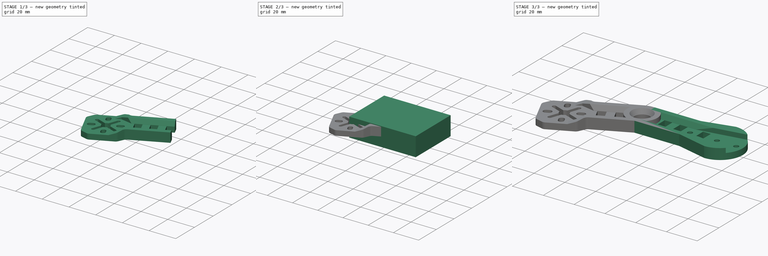
[diagram: build sequence overview — one tinted view per stage of 3, left to right]
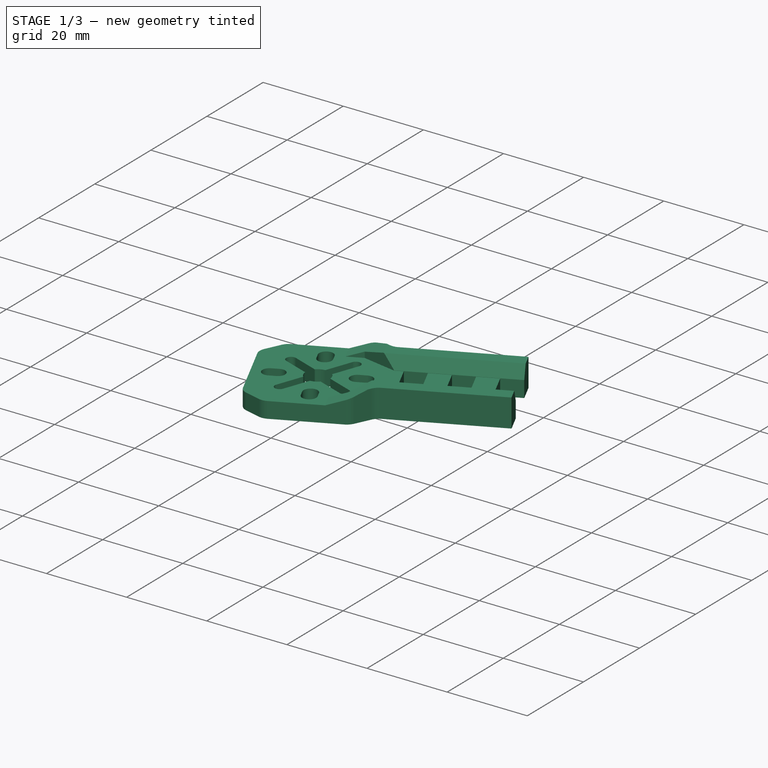
[diagram: stage 1 of 3 — iso view after this stage's code; geometry added in this stage tinted green]
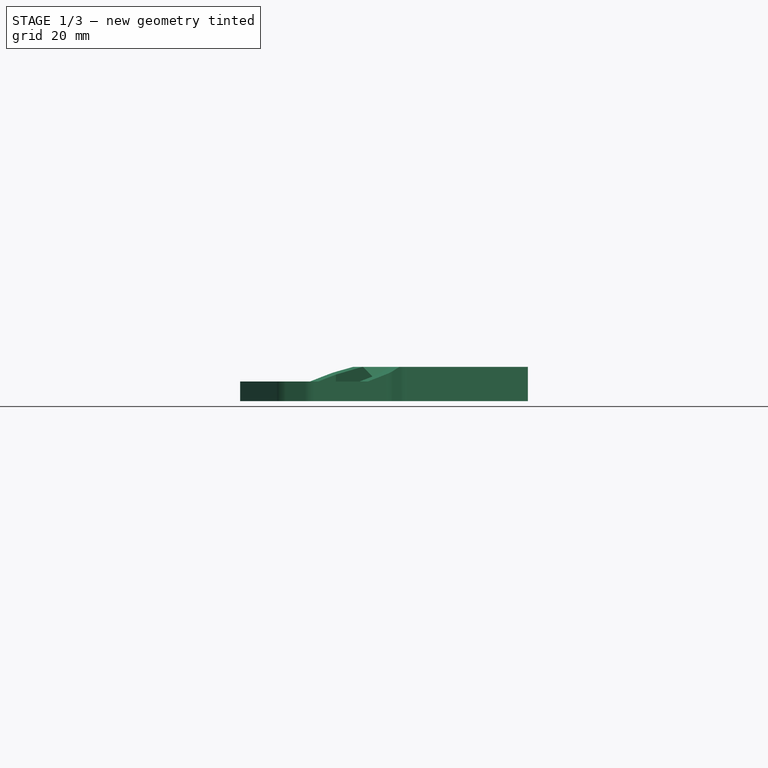
[diagram: stage 1 of 3 — front view after this stage's code; geometry added in this stage tinted green]
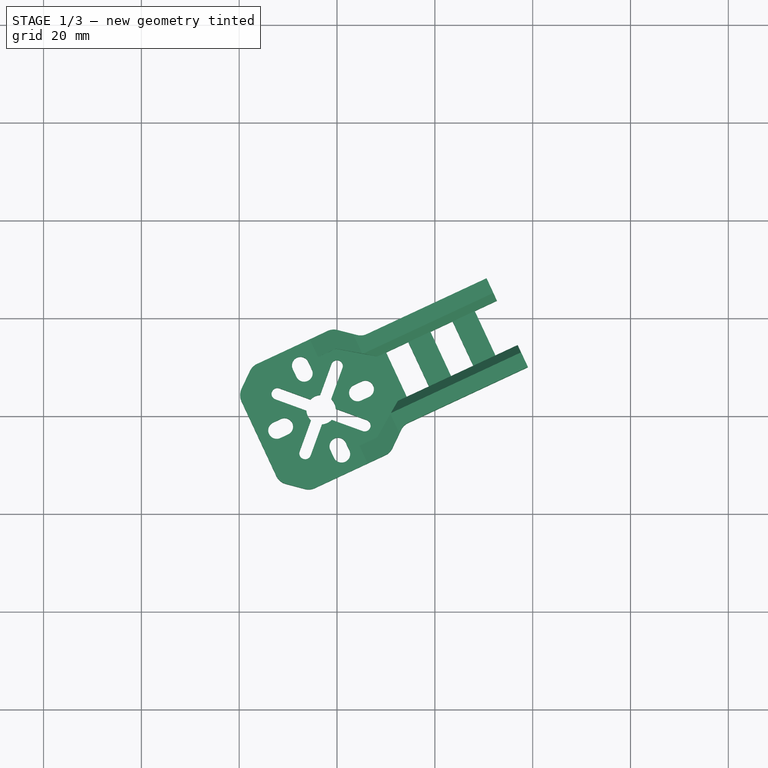
[diagram: stage 1 of 3 — top view after this stage's code; geometry added in this stage tinted green]
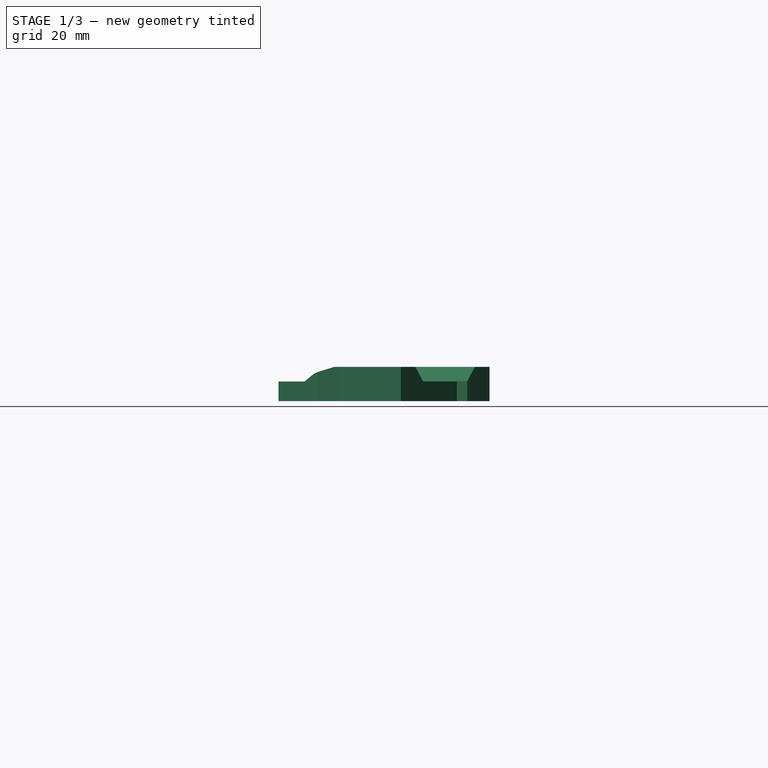
[diagram: stage 1 of 3 — right view after this stage's code; geometry added in this stage tinted green]
FCSTD DOCUMENT  (FreeCAD 0.16R6703 (Git))
Label: Long Arm 25mm 15graus Dir
License: FreeArt
LicenseURL: http://artlibre.org/licence/lal
objects: Part::Feature×3, Sketcher::SketchObject×3, PartDesign::Pad×2, Part::Cut×2, PartDesign::Revolution×1, Part::Fuse×1
note: 15 computed .brp shape members not serialized (recipe doc carries the construction recipe); baked Part::Feature solids carry a one-line shape summary decoded from their .brp

FEATURE [Part::Feature] Solid002
  shape: bbox 105.3 x 29.5 x 7 mm, 2349 faces (baked)
FEATURE [Sketcher::SketchObject] Sketch001
  sketch-geometry (4):
    g0: LineSegment StartX=42 StartY=22.5881 StartZ=0 EndX=97.3327 EndY=22.5881 EndZ=0
    g1: LineSegment StartX=97.3327 StartY=22.5881 StartZ=0 EndX=97.3327 EndY=-22.8194 EndZ=0
    g2: LineSegment StartX=97.3327 StartY=-22.8194 StartZ=0 EndX=42 EndY=-22.8194 EndZ=0
    g3: LineSegment StartX=42 StartY=-22.8194 StartZ=0 EndX=42 EndY=22.5881 EndZ=0
  constraints (11):
    c: Coincident(g0,g1)
    c: Coincident(g1,g2)
    c: Coincident(g2,g3)
    c: Coincident(g3,g0)
    c: Horizontal(g0)
    c: Horizontal(g2)
    c: Vertical(g1)
    c: Vertical(g3)
    c: Equal(g3,g1)
    c: Equal(g0,g2)
    c: Distance(g-1,g3) = 42
FEATURE [PartDesign::Pad] Pad001
  Length = 20
  Length2 = 100
  Midplane = true
  Sketch = -> Sketch001
  Type = 0
FEATURE [Part::Cut] Cut001  label="Motor Part Shift 10mm"
  Base = -> Solid002
  Placement = pos=(-23.2631,-18.6762,0) rot=(0,0,1;0.436332rad)
  Tool = -> Pad001
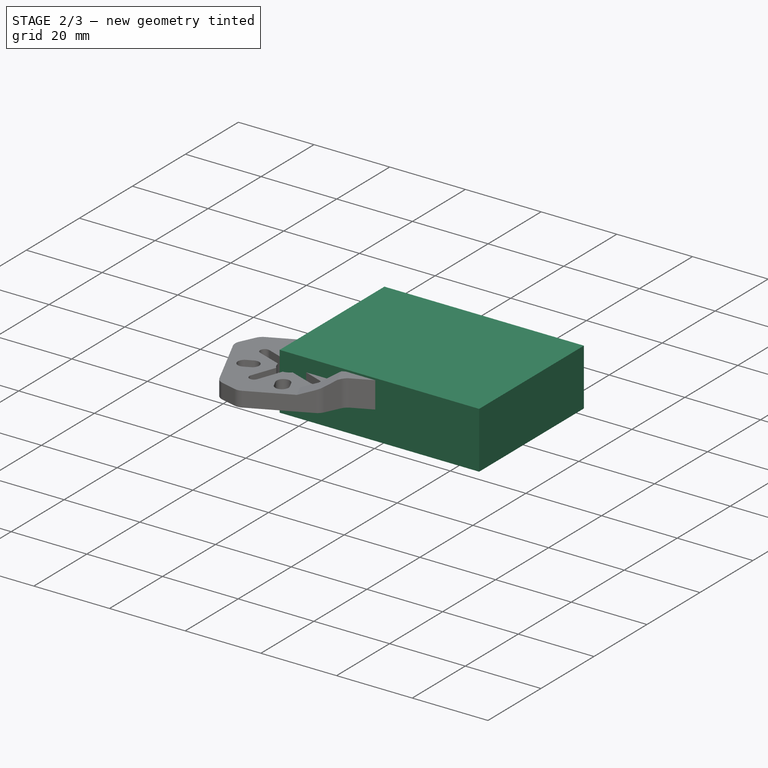
[diagram: stage 2 of 3 — iso view after this stage's code; geometry added in this stage tinted green]
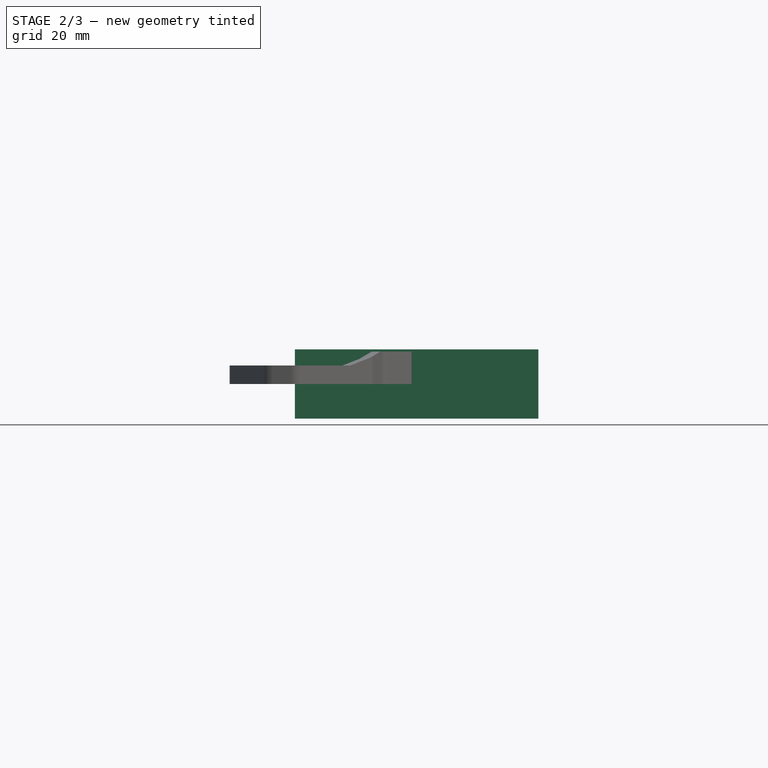
[diagram: stage 2 of 3 — front view after this stage's code; geometry added in this stage tinted green]
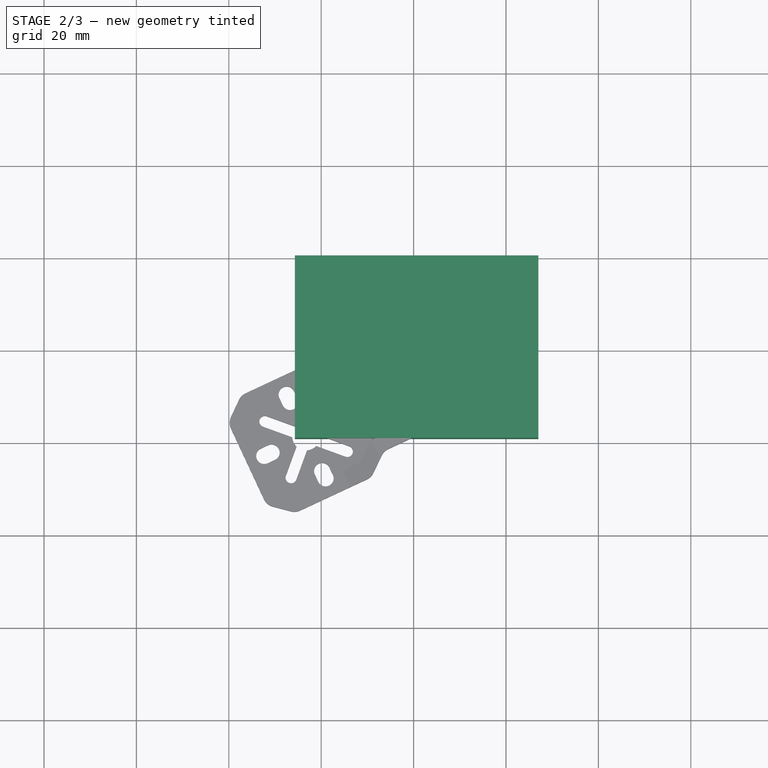
[diagram: stage 2 of 3 — top view after this stage's code; geometry added in this stage tinted green]
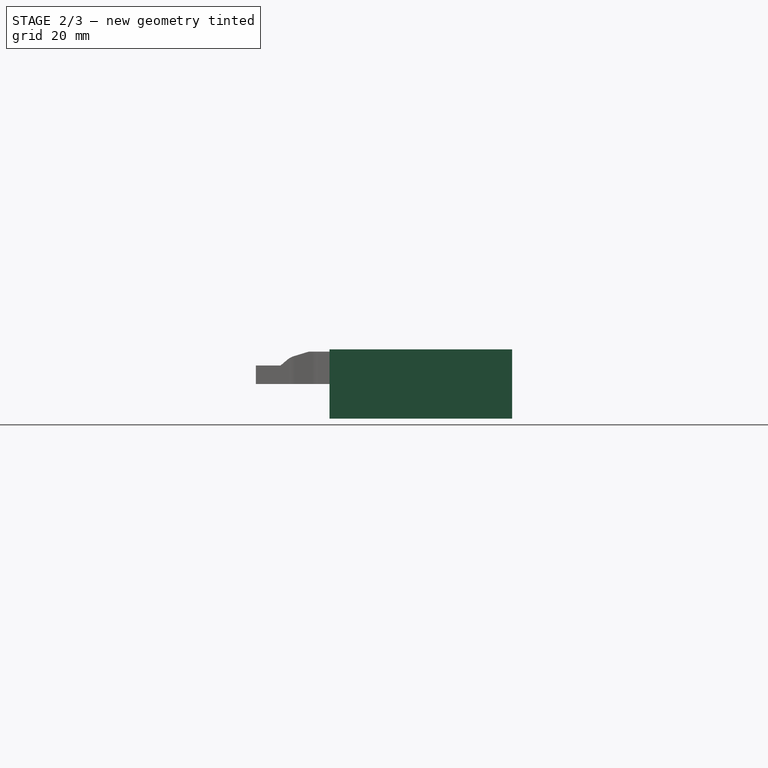
[diagram: stage 2 of 3 — right view after this stage's code; geometry added in this stage tinted green]
FEATURE [Part::Feature] Solid
  shape: bbox 105.3 x 29.5 x 7 mm, 2349 faces (baked)
FEATURE [Part::Feature] Solid001
  shape: bbox 105.3 x 29.5 x 7 mm, 2349 faces (baked)
FEATURE [Sketcher::SketchObject] Sketch
  sketch-geometry (4):
    g0: LineSegment StartX=-25.7097 StartY=20.4719 StartZ=0 EndX=27 EndY=20.4719 EndZ=0
    g1: LineSegment StartX=27 StartY=20.4719 StartZ=0 EndX=27 EndY=-19.0577 EndZ=0
    g2: LineSegment StartX=27 StartY=-19.0577 StartZ=0 EndX=-25.7097 EndY=-19.0577 EndZ=0
    g3: LineSegment StartX=-25.7097 StartY=-19.0577 StartZ=0 EndX=-25.7097 EndY=20.4719 EndZ=0
  constraints (11):
    c: Coincident(g0,g1)
    c: Coincident(g1,g2)
    c: Coincident(g2,g3)
    c: Coincident(g3,g0)
    c: Horizontal(g0)
    c: Horizontal(g2)
    c: Vertical(g1)
    c: Vertical(g3)
    c: Equal(g1,g3)
    c: Equal(g0,g2)
    c: Distance(g-1,g1) = 27
FEATURE [PartDesign::Pad] Pad
  Length = 15
  Length2 = 100
  Midplane = true
  Sketch = -> Sketch
  Type = 0
FEATURE [Sketcher::SketchObject] Sketch002
  Placement = pos=(14.8018,-0.926233,0) rot=(0.410726,0.644711,0.644711;2.36216rad)
  Support = -> Cut001 [Face184]
  sketch-geometry (5):
    g0: LineSegment StartX=-9.9596 StartY=6.97213 StartZ=0 EndX=-6.70464 EndY=6.97213 EndZ=0
    g1: LineSegment StartX=-6.70464 StartY=6.97213 StartZ=0 EndX=-4.99773 EndY=4.00301 EndZ=0
    g2: LineSegment StartX=-4.99773 StartY=4.00301 StartZ=0 EndX=-4.99773 EndY=0 EndZ=0
    g3: LineSegment StartX=-4.99773 StartY=0 StartZ=0 EndX=-9.9596 EndY=0 EndZ=0
    g4: LineSegment StartX=-9.9596 StartY=0 StartZ=0 EndX=-9.9596 EndY=6.97213 EndZ=0
  constraints (10):
    c: Horizontal(g0)
    c: Coincident(g0,g1)
    c: Coincident(g1,g2)
    c: PointOnObject(g2,g-1)
    c: Vertical(g2)
    c: Coincident(g2,g3)
    c: Horizontal(g3)
    c: Coincident(g3,g4)
    c: Coincident(g4,g0)
    c: Vertical(g4)
FEATURE [PartDesign::Revolution] Revolution
  Angle = 360
  Axis = (0,0,1)
  Base = (14.8018,-0.926233,0)
  Placement = pos=(-23.2631,-18.6762,0) rot=(0,0,1;0.436332rad)
  ReferenceAxis = -> Sketch002 [V_Axis]
  Sketch = -> Sketch002
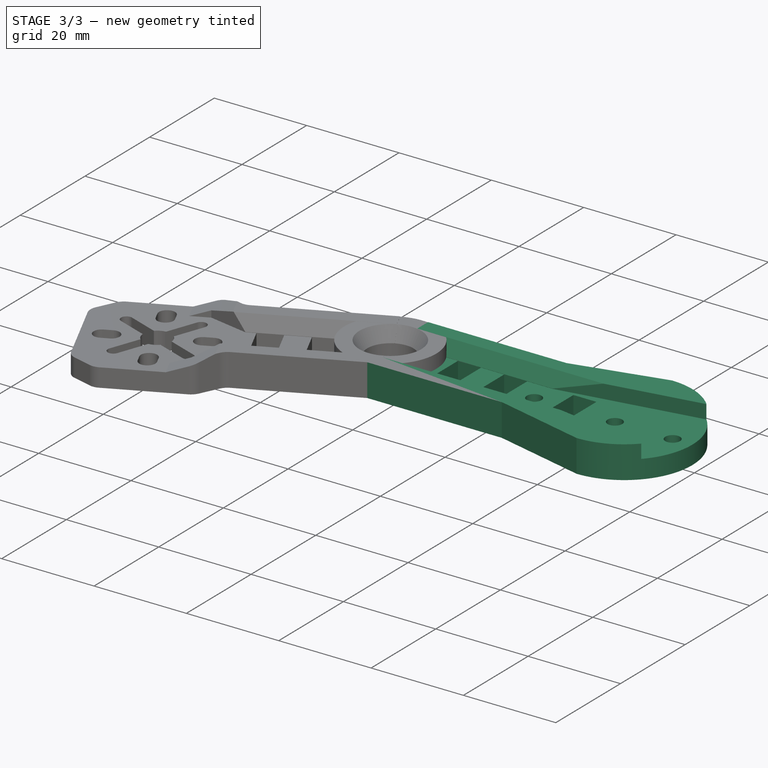
[diagram: stage 3 of 3 — iso view after this stage's code; geometry added in this stage tinted green]
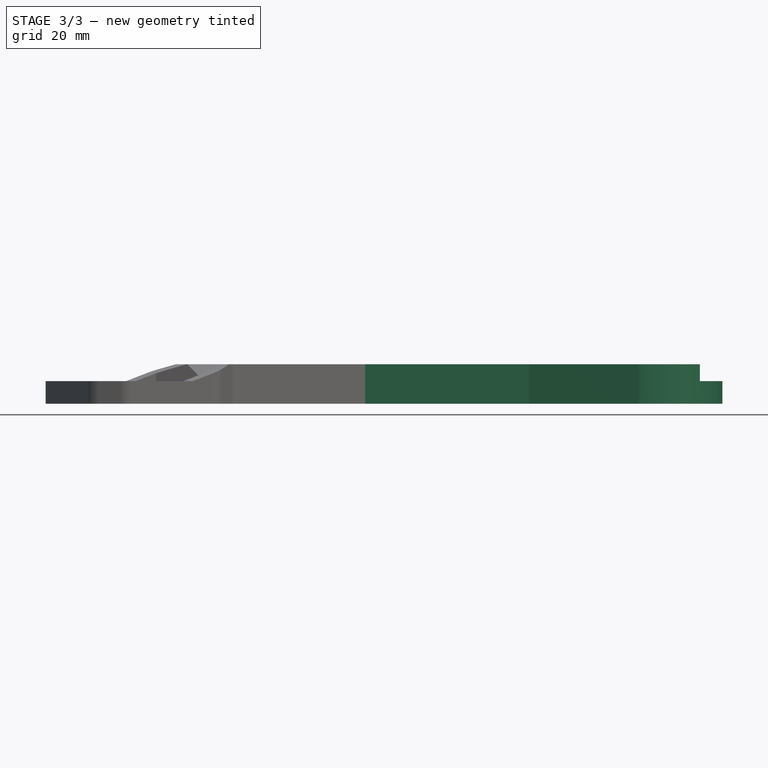
[diagram: stage 3 of 3 — front view after this stage's code; geometry added in this stage tinted green]
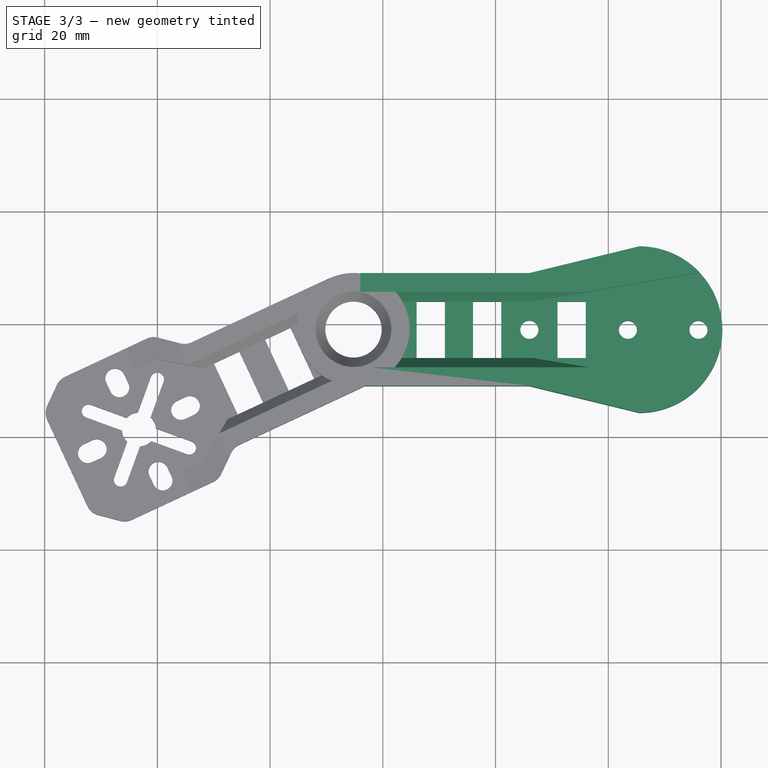
[diagram: stage 3 of 3 — top view after this stage's code; geometry added in this stage tinted green]
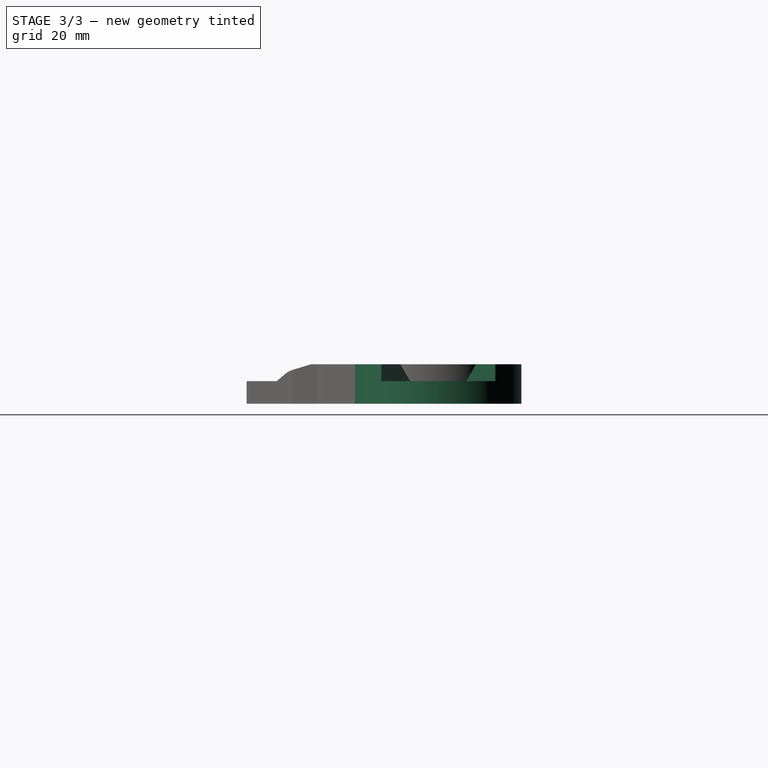
[diagram: stage 3 of 3 — right view after this stage's code; geometry added in this stage tinted green]
FEATURE [Part::Cut] Cut  label="Frame Part"
  Base = -> Solid001
  Placement = pos=(-11,-1,0) rot=(0,0,1;0rad)
  Tool = -> Pad
FEATURE [Part::Fuse] Fusion
  Base = -> Cut
  Tool = -> Revolution
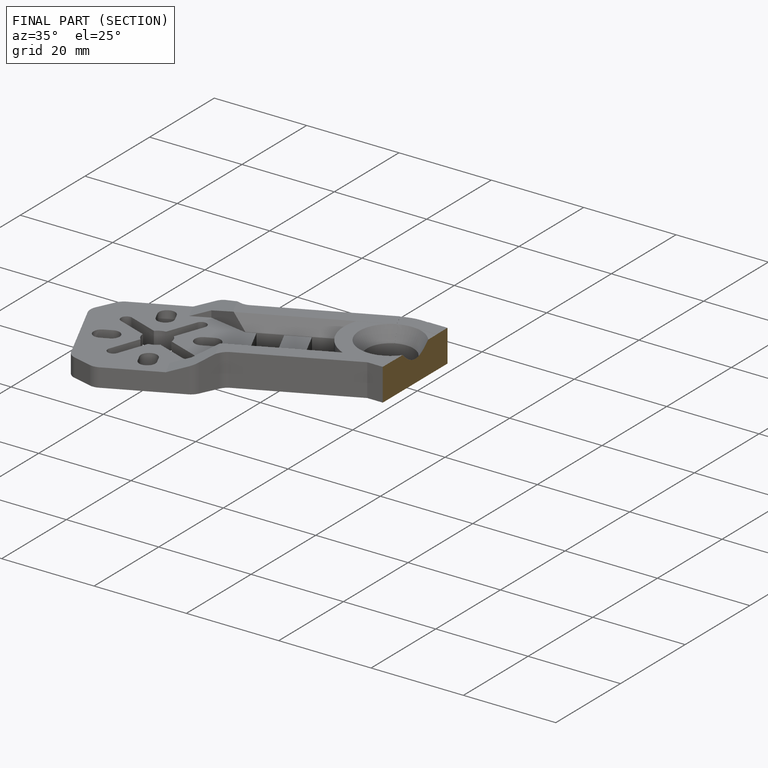
[diagram: finished part — half-section view (interior)]
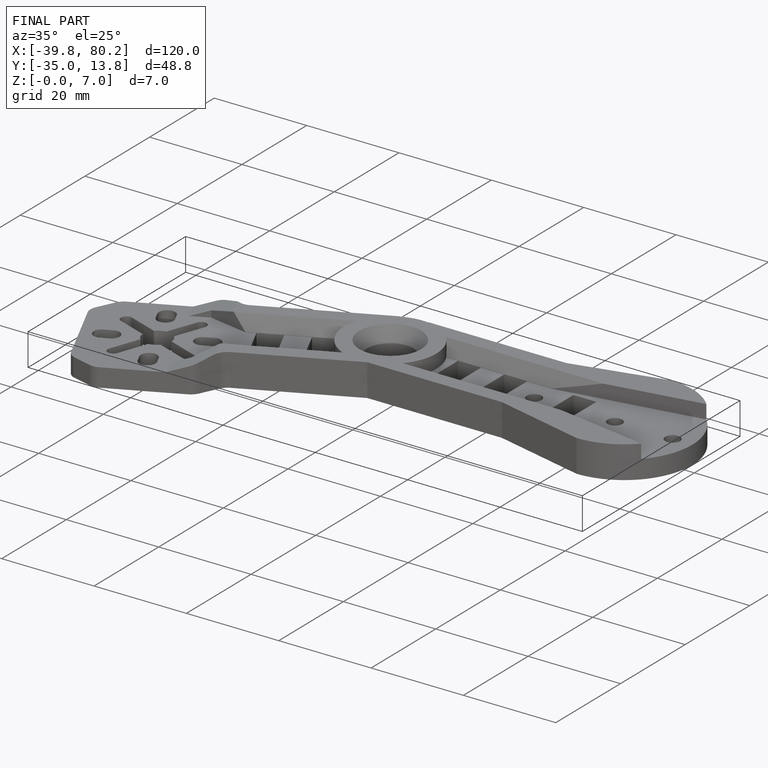
[diagram: finished part — iso view with bounding-box wireframe]
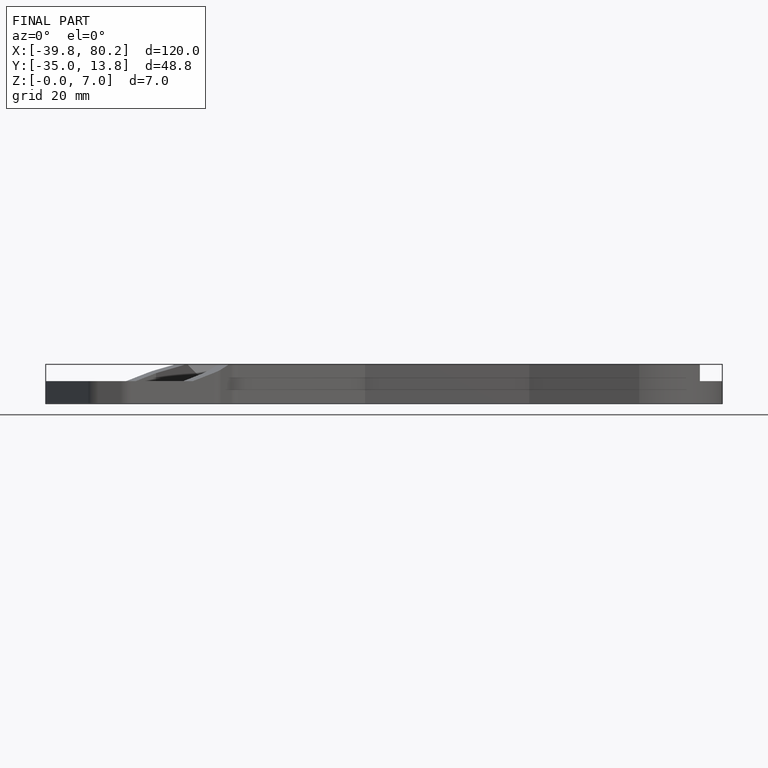
[diagram: finished part — front view with bounding-box wireframe]
